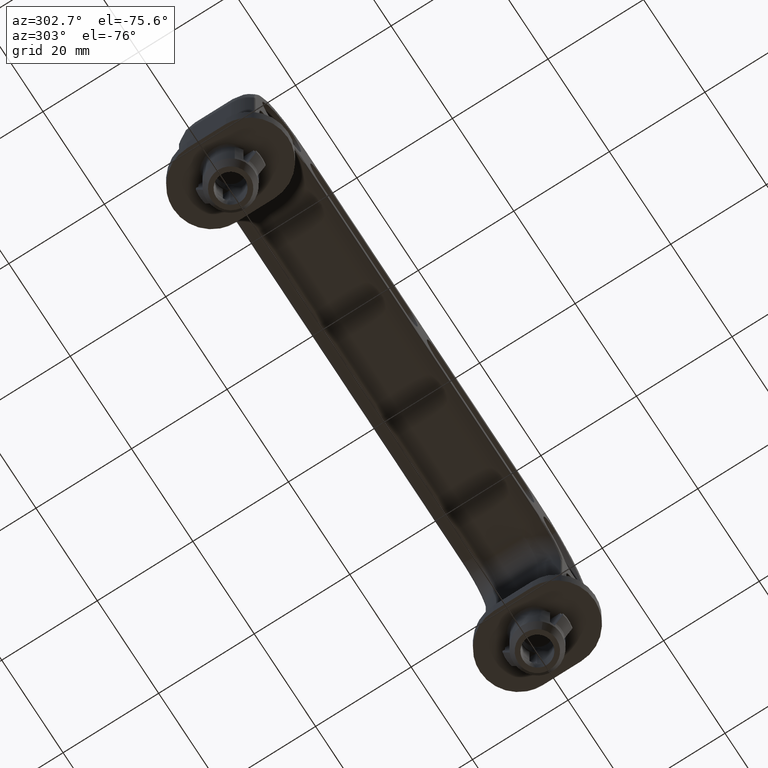
[diagram: clean part render]
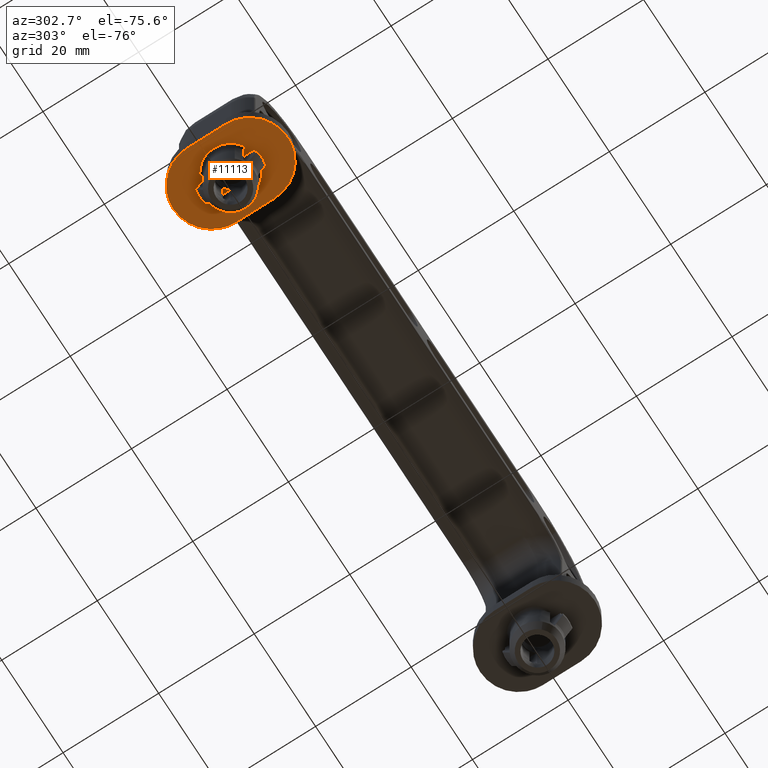
[diagram: same view with one face highlighted and labeled with its STEP entity id]
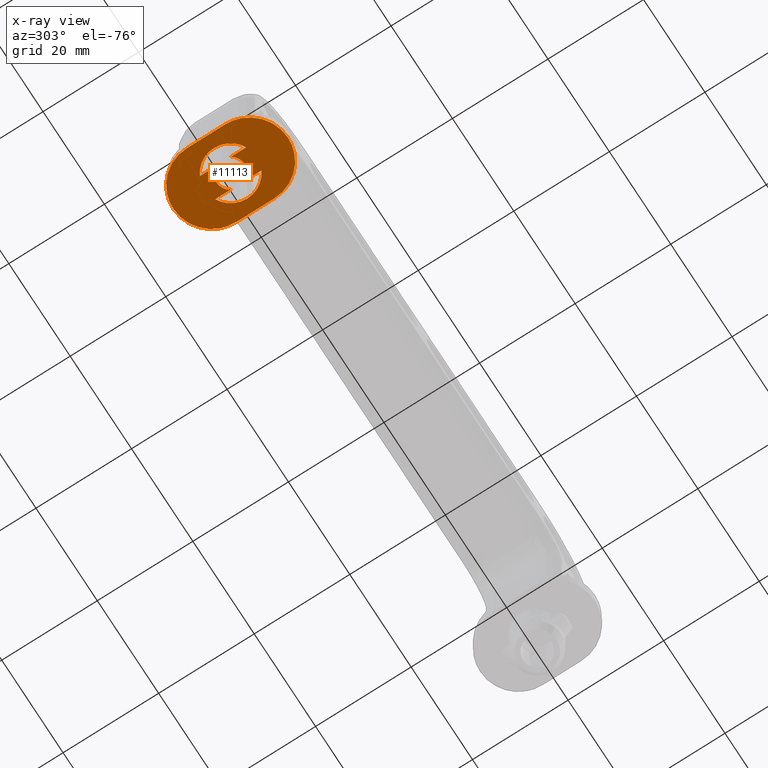
[diagram: x-ray of the same camera — body ghosted, the highlighted face saturated]
A machine part, auxiliary view. The second image highlights one B-rep face of the part: STEP entity #11113.
The next image is the same camera in x-ray: the body ghosted, the highlighted face saturated — about 0% of this face is hidden behind the body in this view.
In plain terms, the highlighted face is a freeform B-spline surface patch.
Its self-contained STEP definition (entity closure, byte-faithful):
#155=CARTESIAN_POINT('',(-47.500000000000000,1.658312395177695,10.600000000000000));
#156=VERTEX_POINT('',#155);
#157=CARTESIAN_POINT('',(-52.500000000000000,1.658312395177705,10.600000000000000));
#158=VERTEX_POINT('',#157);
#159=CARTESIAN_POINT('',(-47.500000000000000,1.658312395177695,10.600000000000000));
#160=CARTESIAN_POINT('',(-47.661584212221896,1.902081264724809,10.600000000000010));
#161=CARTESIAN_POINT('',(-48.067146824540529,2.353376920072141,10.599999999999969));
#162=CARTESIAN_POINT('',(-48.815807990757818,2.800922626965471,10.600000000000071));
#163=CARTESIAN_POINT('',(-49.567186293715167,2.995823987567185,10.599999999999881));
#164=CARTESIAN_POINT('',(-50.185800412454903,3.010065035189627,10.600000000000140));
#165=CARTESIAN_POINT('',(-50.719739568741353,2.927219830919637,10.599999999999911));
#166=CARTESIAN_POINT('',(-51.232753020677350,2.755366815131199,10.600000000000030));
#167=CARTESIAN_POINT('',(-51.892306435280958,2.381691670257950,10.600000000000060));
#168=CARTESIAN_POINT('',(-52.296023231982737,1.966366813279975,10.599999999999829));
#169=CARTESIAN_POINT('',(-52.500000000000000,1.658312395177705,10.600000000000000));
#170=B_SPLINE_CURVE_WITH_KNOTS('',3,(#159,#160,#161,#162,#163,#164,#165,#166,#167,#168,#169),.UNSPECIFIED.,.F.,.U.,(4,1,1,1,1,1,1,1,4),(0.000000280151820,0.877369386533561,1.800933455624372,2.585947906838441,3.186236926623753,3.648017213464980,4.202151512607811,4.802477035067637,5.910723044190836),.UNSPECIFIED.);
#171=EDGE_CURVE('',#156,#158,#170,.T.);
#387=CARTESIAN_POINT('',(-52.500000000000000,-1.658312395177705,10.600000000000000));
#388=VERTEX_POINT('',#387);
#389=CARTESIAN_POINT('',(-47.500000000000000,-1.658312395177695,10.600000000000000));
#390=VERTEX_POINT('',#389);
#391=CARTESIAN_POINT('',(-52.500000000000000,-1.658312395177705,10.600000000000000));
#392=CARTESIAN_POINT('',(-52.380905610340712,-1.837894998102467,10.600000000000010));
#393=CARTESIAN_POINT('',(-52.074141823819510,-2.207024899731201,10.599999999999980));
#394=CARTESIAN_POINT('',(-51.525755400229997,-2.614266885063064,10.600000000000071));
#395=CARTESIAN_POINT('',(-50.872492580537333,-2.896563363554048,10.599999999999950));
#396=CARTESIAN_POINT('',(-50.232207791547467,-3.016158506166519,10.600000000000019));
#397=CARTESIAN_POINT('',(-49.443780886121822,-2.985955277398083,10.600000000000000));
#398=CARTESIAN_POINT('',(-48.714730250184367,-2.754180568391084,10.600000000000000));
#399=CARTESIAN_POINT('',(-48.004813329754988,-2.283838355594192,10.600000000000010));
#400=CARTESIAN_POINT('',(-47.661560176825688,-1.902094598527694,10.599999999999900));
#401=CARTESIAN_POINT('',(-47.500000000000000,-1.658312395177695,10.600000000000000));
#402=B_SPLINE_CURVE_WITH_KNOTS('',3,(#391,#392,#393,#394,#395,#396,#397,#398,#399,#400,#401),.UNSPECIFIED.,.F.,.U.,(4,1,1,1,1,1,1,1,4),(0.000000280130183,0.646465910042801,1.431504782696105,2.031828232736573,2.770702575182787,3.370914826136271,4.386863013616146,5.033375567471170,5.910723044191049),.UNSPECIFIED.);
#403=EDGE_CURVE('',#388,#390,#402,.T.);
#3190=CARTESIAN_POINT('',(-52.500000000000000,-4.842778128306140,10.600000000000000));
#3191=VERTEX_POINT('',#3190);
#3207=CARTESIAN_POINT('',(-52.500000000000000,4.842778128306111,10.600000000000000));
#3208=VERTEX_POINT('',#3207);
#3209=CARTESIAN_POINT('',(-52.500000000000000,4.842778128306111,10.600000000000000));
#3210=CARTESIAN_POINT('',(-52.886455331623452,4.643405081770998,10.600000000000010));
#3211=CARTESIAN_POINT('',(-53.481687329325887,4.239206680585306,10.600000000000010));
#3212=CARTESIAN_POINT('',(-54.334511762861922,3.373804419168989,10.599999999999980));
#3213=CARTESIAN_POINT('',(-54.921289711600309,2.446566709076148,10.600000000000080));
#3214=CARTESIAN_POINT('',(-55.276561111005059,1.447904919526168,10.599999999999900));
#3215=CARTESIAN_POINT('',(-55.462927317151497,0.469227665028822,10.600000000000120));
#3216=CARTESIAN_POINT('',(-55.462898210271177,-0.500512803303950,10.599999999999850));
#3217=CARTESIAN_POINT('',(-55.231655481125578,-1.661531334782871,10.600000000000000));
#3218=CARTESIAN_POINT('',(-54.778572531614692,-2.727994693674675,10.599999999999950));
#3219=CARTESIAN_POINT('',(-53.881213694853443,-3.930227714148137,10.599999999999980));
#3220=CARTESIAN_POINT('',(-53.052270249037001,-4.558199761653090,10.600000000000019));
#3221=CARTESIAN_POINT('',(-52.500000000000000,-4.842778128306140,10.600000000000000));
#3222=B_SPLINE_CURVE_WITH_KNOTS('',3,(#3209,#3210,#3211,#3212,#3213,#3214,#3215,#3216,#3217,#3218,#3219,#3220,#3221),.UNSPECIFIED.,.F.,.U.,(4,1,1,1,1,1,1,1,1,1,4),(0.000000143795175,1.304538945561893,2.143211785209044,3.634153152175054,4.566011751592599,5.311489427904141,6.615951999823757,7.454620476742092,8.852395136854051,10.063799538335930,11.927438868502600),.UNSPECIFIED.);
#3223=EDGE_CURVE('',#3208,#3191,#3222,.T.);
#3274=CARTESIAN_POINT('',(-47.500000000000000,4.842778128306140,10.600000000000000));
#3275=VERTEX_POINT('',#3274);
#3291=CARTESIAN_POINT('',(-47.500000000000000,-4.842778128306100,10.600000000000000));
#3292=VERTEX_POINT('',#3291);
#3293=CARTESIAN_POINT('',(-47.500000000000000,-4.842778128306100,10.600000000000000));
#3294=CARTESIAN_POINT('',(-47.030685887948259,-4.600754295997402,10.600000000000019));
#3295=CARTESIAN_POINT('',(-46.188944417660892,-3.997020383486385,10.600000000000000));
#3296=CARTESIAN_POINT('',(-45.316371082086732,-2.888417355575266,10.599999999999980));
#3297=CARTESIAN_POINT('',(-44.746791921503359,-1.638068798445140,10.600000000000030));
#3298=CARTESIAN_POINT('',(-44.512344745915847,-0.406140815975344,10.599999999999939));
#3299=CARTESIAN_POINT('',(-44.581243397593937,0.934779542076539,10.600000000000030));
#3300=CARTESIAN_POINT('',(-44.955955306216147,2.228217976880254,10.599999999999991));
#3301=CARTESIAN_POINT('',(-45.624804979003819,3.325974980945459,10.600000000000010));
#3302=CARTESIAN_POINT('',(-46.492413904300463,4.221659599311508,10.600000000000000));
#3303=CARTESIAN_POINT('',(-47.113558670182456,4.643396584336101,10.600000000000000));
#3304=CARTESIAN_POINT('',(-47.500000000000000,4.842778128306140,10.600000000000000));
#3305=B_SPLINE_CURVE_WITH_KNOTS('',3,(#3293,#3294,#3295,#3296,#3297,#3298,#3299,#3300,#3301,#3302,#3303,#3304),.UNSPECIFIED.,.F.,.U.,(4,1,1,1,1,1,1,1,1,4),(0.000000143798841,1.584089768698586,3.075045755505748,4.193242892324539,5.684214031963496,6.802345252761810,8.200103799886161,9.691054552562504,10.622916593908020,11.927438868502600),.UNSPECIFIED.);
#3306=EDGE_CURVE('',#3292,#3275,#3305,.T.);
#8098=CARTESIAN_POINT('',(-42.0,4.0,10.600000000000000));
#8099=VERTEX_POINT('',#8098);
#8100=CARTESIAN_POINT('',(-42.0,-4.0,10.600000000000000));
#8101=VERTEX_POINT('',#8100);
#8102=CARTESIAN_POINT('',(-42.0,4.0,10.600000000000000));
#8103=CARTESIAN_POINT('',(-42.0,-4.0,10.600000000000000));
#8104=QUASI_UNIFORM_CURVE('',1,(#8102,#8103),.UNSPECIFIED.,.F.,.U.);
#8105=EDGE_CURVE('',#8099,#8101,#8104,.T.);
#8139=CARTESIAN_POINT('',(-49.999998912494661,11.999999999999931,10.600000000000000));
#8140=VERTEX_POINT('',#8139);
#8141=CARTESIAN_POINT('',(-49.999998912494661,11.999999999999931,10.600000000000000));
#8142=CARTESIAN_POINT('',(-49.476397711729753,12.000063963271099,10.600000000000000));
#8143=CARTESIAN_POINT('',(-48.461947694494413,11.900057092867961,10.600000000000019));
#8144=CARTESIAN_POINT('',(-47.138667509741772,11.507494591513851,10.599999999999980));
#8145=CARTESIAN_POINT('',(-45.896967746872612,10.910856311539391,10.600000000000071));
#8146=CARTESIAN_POINT('',(-44.740903561971933,10.096740803150720,10.599999999999930));
#8147=CARTESIAN_POINT('',(-43.697926679331161,9.001202590467134,10.600000000000019));
#8148=CARTESIAN_POINT('',(-42.999417022624193,7.927437718040178,10.599999999999991));
#8149=CARTESIAN_POINT('',(-42.446119231786007,6.738891282818040,10.600000000000099));
#8150=CARTESIAN_POINT('',(-42.087321854413013,5.472629325404747,10.599999999999740));
#8151=CARTESIAN_POINT('',(-41.999980413887833,4.458145984786716,10.600000000000209));
#8152=CARTESIAN_POINT('',(-42.0,4.0,10.600000000000000));
#8153=B_SPLINE_CURVE_WITH_KNOTS('',3,(#8141,#8142,#8143,#8144,#8145,#8146,#8147,#8148,#8149,#8150,#8151,#8152),.UNSPECIFIED.,.F.,.U.,(4,1,1,1,1,1,1,1,1,4),(0.000000102724696,1.570800032119115,3.043436772583682,4.123383372952025,5.694214286011239,7.264945272844187,8.639431876060064,9.523014028385237,11.191994718083810,12.566448850065340),.UNSPECIFIED.);
#8154=EDGE_CURVE('',#8140,#8099,#8153,.T.);
#8156=CARTESIAN_POINT('',(-58.0,4.0,10.600000000000000));
#8157=VERTEX_POINT('',#8156);
#8158=CARTESIAN_POINT('',(-58.0,4.0,10.600000000000000));
#8159=CARTESIAN_POINT('',(-58.000059147248393,4.523601246295259,10.600000000000000));
#8160=CARTESIAN_POINT('',(-57.903275161014783,5.505322225895249,10.600000000000019));
#8161=CARTESIAN_POINT('',(-57.519026827656667,6.830254169228333,10.599999999999961));
#8162=CARTESIAN_POINT('',(-56.859758059102433,8.224557196182293,10.600000000000041));
#8163=CARTESIAN_POINT('',(-55.948093606734282,9.438058082236719,10.600000000000030));
#8164=CARTESIAN_POINT('',(-54.588093546417902,10.625865363057050,10.599999999999950));
#8165=CARTESIAN_POINT('',(-53.176473631959418,11.414187736849129,10.600000000000019));
#8166=CARTESIAN_POINT('',(-51.538028813895060,11.900026635099410,10.600000000000010));
#8167=CARTESIAN_POINT('',(-50.523593600004183,12.000066921608880,10.599999999999991));
#8168=CARTESIAN_POINT('',(-49.999998912494661,11.999999999999931,10.600000000000000));
#8169=B_SPLINE_CURVE_WITH_KNOTS('',3,(#8158,#8159,#8160,#8161,#8162,#8163,#8164,#8165,#8166,#8167,#8168),.UNSPECIFIED.,.F.,.U.,(4,1,1,1,1,1,1,1,4),(0.000000102351583,1.570800185180506,2.945259180758480,4.123383774799059,6.185086150546311,7.461317578233589,9.523014957407149,10.995669553874061,12.566450075944919),.UNSPECIFIED.);
#8170=EDGE_CURVE('',#8157,#8140,#8169,.T.);
#8188=CARTESIAN_POINT('',(-58.0,-4.0,10.600000000000000));
#8189=VERTEX_POINT('',#8188);
#8190=CARTESIAN_POINT('',(-58.0,-4.0,10.600000000000000));
#8191=CARTESIAN_POINT('',(-58.0,4.0,10.600000000000000));
#8192=QUASI_UNIFORM_CURVE('',1,(#8190,#8191),.UNSPECIFIED.,.F.,.U.);
#8193=EDGE_CURVE('',#8189,#8157,#8192,.T.);
#8223=CARTESIAN_POINT('',(-50.000001087505332,-11.999999999999931,10.600000000000000));
#8224=VERTEX_POINT('',#8223);
#8225=CARTESIAN_POINT('',(-50.000001087505332,-11.999999999999931,10.600000000000000));
#8226=CARTESIAN_POINT('',(-50.458139596361853,-12.000032998825199,10.599999999999980));
#8227=CARTESIAN_POINT('',(-51.472607501998588,-11.912641457443399,10.600000000000030));
#8228=CARTESIAN_POINT('',(-53.087180739741179,-11.455333305390599,10.599999999999991));
#8229=CARTESIAN_POINT('',(-54.560314120454549,-10.644444975920340,10.599999999999991));
#8230=CARTESIAN_POINT('',(-55.828716799919299,-9.550227818765881,10.600000000000060));
#8231=CARTESIAN_POINT('',(-56.665188097177122,-8.491854625406431,10.599999999999920));
#8232=CARTESIAN_POINT('',(-57.376639001812897,-7.199277166477686,10.600000000000060));
#8233=CARTESIAN_POINT('',(-57.869320394510481,-5.767119311449600,10.599999999999969));
#8234=CARTESIAN_POINT('',(-58.000098108992212,-4.589051692487166,10.600000000000090));
#8235=CARTESIAN_POINT('',(-58.0,-4.0,10.600000000000000));
#8236=B_SPLINE_CURVE_WITH_KNOTS('',3,(#8225,#8226,#8227,#8228,#8229,#8230,#8231,#8232,#8233,#8234,#8235),.UNSPECIFIED.,.F.,.U.,(4,1,1,1,1,1,1,1,4),(0.000000102742900,1.374426321640422,3.043436772597788,5.006959099407153,6.381365976186993,8.050360449565275,9.032135338563279,10.799300577182651,12.566448850065150),.UNSPECIFIED.);
#8237=EDGE_CURVE('',#8224,#8189,#8236,.T.);
#8239=CARTESIAN_POINT('',(-42.0,-4.0,10.600000000000000));
#8240=CARTESIAN_POINT('',(-41.999970587994802,-4.458140503993866,10.600000000000010));
#8241=CARTESIAN_POINT('',(-42.078924517212663,-5.374423712104403,10.600000000000000));
#8242=CARTESIAN_POINT('',(-42.463905855861107,-6.835489848362812,10.600000000000030));
#8243=CARTESIAN_POINT('',(-43.099375535040203,-8.137377591351269,10.599999999999961));
#8244=CARTESIAN_POINT('',(-44.076701102847267,-9.455266240246433,10.600000000000019));
#8245=CARTESIAN_POINT('',(-45.200485663428012,-10.473759289015760,10.599999999999991));
#8246=CARTESIAN_POINT('',(-46.676176700577109,-11.333803803065640,10.600000000000071));
#8247=CARTESIAN_POINT('',(-48.232886404507973,-11.869319972766050,10.599999999999969));
#8248=CARTESIAN_POINT('',(-49.410948739466782,-12.000097896084540,10.600000000000000));
#8249=CARTESIAN_POINT('',(-50.000001087505332,-11.999999999999931,10.600000000000000));
#8250=B_SPLINE_CURVE_WITH_KNOTS('',3,(#8239,#8240,#8241,#8242,#8243,#8244,#8245,#8246,#8247,#8248,#8249),.UNSPECIFIED.,.F.,.U.,(4,1,1,1,1,1,1,1,4),(0.000000102351812,1.374426455376627,2.748911632378633,4.516091310831343,5.694214840955159,7.657653704217902,9.032136219827144,10.799301631108200,12.566450075944910),.UNSPECIFIED.);
#8251=EDGE_CURVE('',#8101,#8224,#8250,.T.);
#10897=CARTESIAN_POINT('',(-47.500000000000000,-1.658312395177695,10.600000000000000));
#10898=CARTESIAN_POINT('',(-47.500000000000000,-4.842778128306100,10.600000000000000));
#10899=QUASI_UNIFORM_CURVE('',1,(#10897,#10898),.UNSPECIFIED.,.F.,.U.);
#10900=EDGE_CURVE('',#390,#3292,#10899,.T.);
#10911=CARTESIAN_POINT('',(-47.500000000000000,4.842778128306140,10.600000000000000));
#10912=CARTESIAN_POINT('',(-47.500000000000000,1.658312395177695,10.600000000000000));
#10913=QUASI_UNIFORM_CURVE('',1,(#10911,#10912),.UNSPECIFIED.,.F.,.U.);
#10914=EDGE_CURVE('',#3275,#156,#10913,.T.);
#11043=CARTESIAN_POINT('',(-52.500000000000000,4.842778128306111,10.600000000000000));
#11044=CARTESIAN_POINT('',(-52.500000000000000,1.658312395177705,10.600000000000000));
#11045=QUASI_UNIFORM_CURVE('',1,(#11043,#11044),.UNSPECIFIED.,.F.,.U.);
#11046=EDGE_CURVE('',#3208,#158,#11045,.T.);
#11057=CARTESIAN_POINT('',(-52.500000000000000,-1.658312395177705,10.600000000000000));
#11058=CARTESIAN_POINT('',(-52.500000000000000,-4.842778128306140,10.600000000000000));
#11059=QUASI_UNIFORM_CURVE('',1,(#11057,#11058),.UNSPECIFIED.,.F.,.U.);
#11060=EDGE_CURVE('',#388,#3191,#11059,.T.);
#11090=CARTESIAN_POINT('',(-58.799199968988901,13.198799953483260,10.600000000000000));
#11091=CARTESIAN_POINT('',(-41.200799601857653,13.198799953483260,10.600000000000000));
#11092=CARTESIAN_POINT('',(-58.799199968988901,-13.198800597213420,10.600000000000000));
#11093=CARTESIAN_POINT('',(-41.200799601857653,-13.198800597213420,10.600000000000000));
#11094=B_SPLINE_SURFACE_WITH_KNOTS('',1,1,((#11090,#11092),(#11091,#11093)),.UNSPECIFIED.,.F.,.F.,.U.,(2,2),(2,2),(0.0,17.598400367131251),(0.0,26.397600550696691),.UNSPECIFIED.);
#11095=ORIENTED_EDGE('',*,*,#8251,.T.);
#11096=ORIENTED_EDGE('',*,*,#8237,.T.);
#11097=ORIENTED_EDGE('',*,*,#8193,.T.);
#11098=ORIENTED_EDGE('',*,*,#8170,.T.);
#11099=ORIENTED_EDGE('',*,*,#8154,.T.);
#11100=ORIENTED_EDGE('',*,*,#8105,.T.);
#11101=EDGE_LOOP('',(#11095,#11096,#11097,#11098,#11099,#11100));
#11102=FACE_OUTER_BOUND('',#11101,.T.);
#11103=ORIENTED_EDGE('',*,*,#11060,.F.);
#11104=ORIENTED_EDGE('',*,*,#403,.T.);
#11105=ORIENTED_EDGE('',*,*,#10900,.T.);
#11106=ORIENTED_EDGE('',*,*,#3306,.T.);
#11107=ORIENTED_EDGE('',*,*,#10914,.T.);
#11108=ORIENTED_EDGE('',*,*,#171,.T.);
#11109=ORIENTED_EDGE('',*,*,#11046,.F.);
#11110=ORIENTED_EDGE('',*,*,#3223,.T.);
#11111=EDGE_LOOP('',(#11103,#11104,#11105,#11106,#11107,#11108,#11109,#11110));
#11112=FACE_BOUND('',#11111,.T.);
#11113=ADVANCED_FACE('',(#11102,#11112),#11094,.T.);